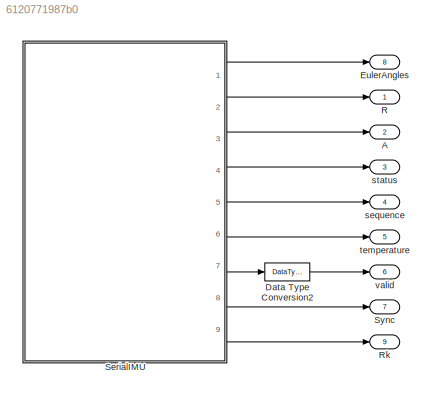
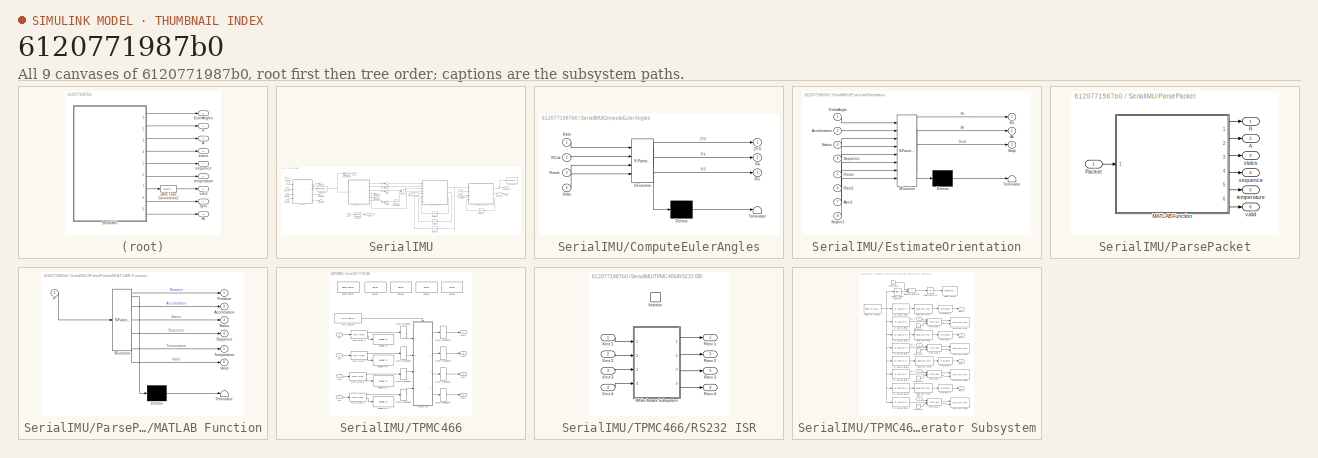
[diagram: thumbnail index - all 9 canvases of the model, root first then tree order]
MODEL slx_6120771987b0
KIND model
BLOCK [Outport] A
  IconDisplay = Port number
  Port = 2
BLOCK [DataTypeConversion] Data Type Conversion2
  OutDataTypeStr = double
  RndMeth = Floor
  SaturateOnIntegerOverflow = off
BLOCK [Outport] EulerAngles
  IconDisplay = Port number
  Port = 8
BLOCK [Outport] R
  IconDisplay = Port number
BLOCK [Outport] Rk
  IconDisplay = Port number
  Port = 9
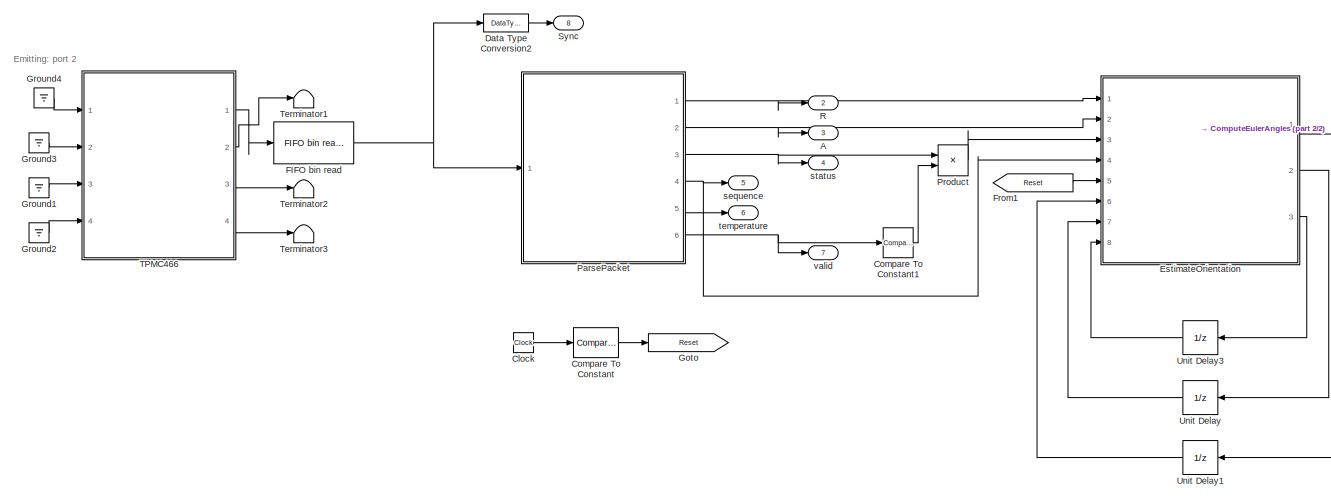
[diagram: SerialIMU - part 1/2, center side, full height]
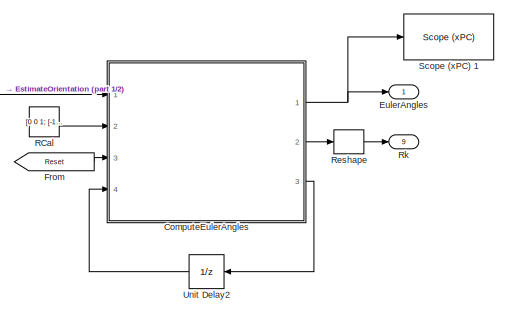
[diagram: SerialIMU - part 2/2, middle right region]
BLOCK [SubSystem] SerialIMU
  FunctionWithSeparateData = off
  MaskHideContents = off
  MinAlgLoopOccurrences = off
  Opaque = off
  Ports = [0, 9]
  PropExecContextOutsideSubsystem = off
  RTWSystemCode = Auto
  RequestExecContextInheritance = off
BLOCK [Outport] SerialIMU/A
  IconDisplay = Port number
  Port = 3
BLOCK [Clock] SerialIMU/Clock
BLOCK [Reference] SerialIMU/Compare To Constant  REF=simulink/Logic and Bit
Operations/Compare
To Constant
  OutDataTypeStr = uint8
  Ports = [1, 1]
  SourceBlock = simulink/Logic and Bit\nOperations/Compare\nTo Constant
  SourceType = Compare To Constant
  ZeroCross = on
  const = 0.2
  relop = <
BLOCK [Reference] SerialIMU/Compare To Constant1  REF=simulink/Logic and Bit
Operations/Compare
To Constant
  OutDataTypeStr = uint8
  Ports = [1, 1]
  SourceBlock = simulink/Logic and Bit\nOperations/Compare\nTo Constant
  SourceType = Compare To Constant
  ZeroCross = on
  const = 1
  relop = ==
BLOCK [SubSystem] SerialIMU/ComputeEulerAngles
  ErrorFcn = Stateflow.Translate.translate
  FunctionWithSeparateData = off
  MaskHideContents = off
  MinAlgLoopOccurrences = off
  Opaque = off
  PermitHierarchicalResolution = ExplicitOnly
  Ports = [4, 3]
  PropExecContextOutsideSubsystem = off
  RTWSystemCode = Auto
  RequestExecContextInheritance = off
  SFBlockType = MATLAB Function
  TreatAsAtomicUnit = on
BLOCK [Demux] SerialIMU/ComputeEulerAngles/ Demux 
  Outputs = 1
  Ports = [1, 1]
BLOCK [S-Function] SerialIMU/ComputeEulerAngles/ SFunction 
  EnableBusSupport = on
  FunctionName = sf_sfun
  PortCounts = [4 4]
  Ports = [4, 4]
  Tag = Stateflow S-Function KVHSerial03 1
BLOCK [Terminator] SerialIMU/ComputeEulerAngles/ Terminator 
BLOCK [Outport] SerialIMU/ComputeEulerAngles/R0
  IconDisplay = Port number
  Port = 3
BLOCK [Inport] SerialIMU/ComputeEulerAngles/R0In
  IconDisplay = Port number
  Port = 4
BLOCK [Inport] SerialIMU/ComputeEulerAngles/RCal
  IconDisplay = Port number
  Port = 2
BLOCK [Inport] SerialIMU/ComputeEulerAngles/Reset
  IconDisplay = Port number
  Port = 3
BLOCK [Outport] SerialIMU/ComputeEulerAngles/Rk
  IconDisplay = Port number
  Port = 2
BLOCK [Inport] SerialIMU/ComputeEulerAngles/RkIn
  IconDisplay = Port number
BLOCK [Outport] SerialIMU/ComputeEulerAngles/ZYX
  IconDisplay = Port number
BLOCK [DataTypeConversion] SerialIMU/Data Type Conversion2
  OutDataTypeStr = double
  RndMeth = Floor
  SaturateOnIntegerOverflow = off
BLOCK [SubSystem] SerialIMU/EstimateOrientation
  ErrorFcn = Stateflow.Translate.translate
  FunctionWithSeparateData = off
  MaskHideContents = off
  MinAlgLoopOccurrences = off
  Opaque = off
  PermitHierarchicalResolution = ExplicitOnly
  Ports = [8, 3]
  PropExecContextOutsideSubsystem = off
  RTWSystemCode = Auto
  RequestExecContextInheritance = off
  SFBlockType = MATLAB Function
  TreatAsAtomicUnit = on
BLOCK [Demux] SerialIMU/EstimateOrientation/ Demux 
  Outputs = 1
  Ports = [1, 1]
BLOCK [S-Function] SerialIMU/EstimateOrientation/ SFunction 
  EnableBusSupport = on
  FunctionName = sf_sfun
  PortCounts = [8 4]
  Ports = [8, 4]
  Tag = Stateflow S-Function KVHSerial03 2
BLOCK [Terminator] SerialIMU/EstimateOrientation/ Terminator 
BLOCK [Inport] SerialIMU/EstimateOrientation/Acceleration
  IconDisplay = Port number
  Port = 2
BLOCK [Outport] SerialIMU/EstimateOrientation/Ak
  IconDisplay = Port number
  Port = 2
BLOCK [Inport] SerialIMU/EstimateOrientation/Akm1
  IconDisplay = Port number
  Port = 7
BLOCK [Inport] SerialIMU/EstimateOrientation/DeltaAngle
  IconDisplay = Port number
BLOCK [Inport] SerialIMU/EstimateOrientation/Reset
  IconDisplay = Port number
  Port = 5
BLOCK [Outport] SerialIMU/EstimateOrientation/Rk
  IconDisplay = Port number
BLOCK [Inport] SerialIMU/EstimateOrientation/Rkm1
  IconDisplay = Port number
  Port = 6
BLOCK [Outport] SerialIMU/EstimateOrientation/Seqk
  IconDisplay = Port number
  Port = 3
BLOCK [Inport] SerialIMU/EstimateOrientation/Seqkm1
  IconDisplay = Port number
  Port = 8
BLOCK [Inport] SerialIMU/EstimateOrientation/Sequence
  IconDisplay = Port number
  Port = 4
BLOCK [Inport] SerialIMU/EstimateOrientation/Status
  IconDisplay = Port number
  Port = 3
BLOCK [Outport] SerialIMU/EulerAngles
  IconDisplay = Port number
BLOCK [Reference] SerialIMU/FIFO bin read   REF=xpcseriallib/FIFO bin read 
  Ports = [1, 1]
  SourceBlock = xpcseriallib/FIFO bin read
  SourceType = Asynchronous FIFO Block: reader
  enable = off
  header = {char([254 129 255 85])}
  hold = Zero output if no new data
  lengths = [36]
  maxsize = 64
  outputtype = 8 bit uint null terminated
  sampletime = 0.001
BLOCK [From] SerialIMU/From
  GotoTag = Reset
BLOCK [From] SerialIMU/From1
  GotoTag = Reset
BLOCK [Goto] SerialIMU/Goto
  GotoTag = Reset
BLOCK [Ground] SerialIMU/Ground1
BLOCK [Ground] SerialIMU/Ground2
BLOCK [Ground] SerialIMU/Ground3
BLOCK [Ground] SerialIMU/Ground4
BLOCK [SubSystem] SerialIMU/ParsePacket
  FunctionWithSeparateData = off
  MaskHideContents = off
  MinAlgLoopOccurrences = off
  Opaque = off
  Ports = [1, 6]
  PropExecContextOutsideSubsystem = off
  RTWSystemCode = Auto
  RequestExecContextInheritance = off
BLOCK [Outport] SerialIMU/ParsePacket/A
  IconDisplay = Port number
  Port = 2
BLOCK [SubSystem] SerialIMU/ParsePacket/MATLAB Function
  ErrorFcn = Stateflow.Translate.translate
  FunctionWithSeparateData = off
  MaskHideContents = off
  MinAlgLoopOccurrences = off
  Opaque = off
  PermitHierarchicalResolution = ExplicitOnly
  Ports = [1, 6]
  PropExecContextOutsideSubsystem = off
  RTWSystemCode = Auto
  RequestExecContextInheritance = off
  SFBlockType = MATLAB Function
  TreatAsAtomicUnit = on
BLOCK [Demux] SerialIMU/ParsePacket/MATLAB Function/ Demux 
  Outputs = 1
  Ports = [1, 1]
BLOCK [S-Function] SerialIMU/ParsePacket/MATLAB Function/ SFunction 
  EnableBusSupport = on
  FunctionName = sf_sfun
  PortCounts = [1 7]
  Ports = [1, 7]
  Tag = Stateflow S-Function KVHSerial03 4
BLOCK [Terminator] SerialIMU/ParsePacket/MATLAB Function/ Terminator 
BLOCK [Outport] SerialIMU/ParsePacket/MATLAB Function/Acceleration
  IconDisplay = Port number
  Port = 2
BLOCK [Inport] SerialIMU/ParsePacket/MATLAB Function/P
  IconDisplay = Port number
BLOCK [Outport] SerialIMU/ParsePacket/MATLAB Function/Rotation
  IconDisplay = Port number
BLOCK [Outport] SerialIMU/ParsePacket/MATLAB Function/Sequence
  IconDisplay = Port number
  Port = 4
BLOCK [Outport] SerialIMU/ParsePacket/MATLAB Function/Status
  IconDisplay = Port number
  Port = 3
BLOCK [Outport] SerialIMU/ParsePacket/MATLAB Function/Temperature
  IconDisplay = Port number
  Port = 5
BLOCK [Outport] SerialIMU/ParsePacket/MATLAB Function/Valid
  IconDisplay = Port number
  Port = 6
BLOCK [Inport] SerialIMU/ParsePacket/Packet
  IconDisplay = Port number
BLOCK [Outport] SerialIMU/ParsePacket/R
  IconDisplay = Port number
BLOCK [Outport] SerialIMU/ParsePacket/sequence
  IconDisplay = Port number
  Port = 4
BLOCK [Outport] SerialIMU/ParsePacket/status
  IconDisplay = Port number
  Port = 3
BLOCK [Outport] SerialIMU/ParsePacket/temperature
  IconDisplay = Port number
  Port = 5
BLOCK [Outport] SerialIMU/ParsePacket/valid
  IconDisplay = Port number
  Port = 6
BLOCK [Product] SerialIMU/Product
  InputSameDT = off
  OutDataTypeStr = Inherit: Inherit via internal rule
  Ports = [2, 1]
  SaturateOnIntegerOverflow = off
BLOCK [Outport] SerialIMU/R
  IconDisplay = Port number
  Port = 2
BLOCK [Constant] SerialIMU/RCal
  Value = [0 0 1; [-1 -1; 1 -1]/sqrt(2) [0; 0]]'
BLOCK [Reshape] SerialIMU/Reshape
  Ports = [1, 1]
BLOCK [Outport] SerialIMU/Rk
  IconDisplay = Port number
  Port = 9
BLOCK [Reference] SerialIMU/Scope (xPC) 1  REF=xpclib/Misc./Scope (xPC) 
  Ports = [1]
  SourceBlock = xpclib/Misc./Scope (xPC)
  SourceType = xpcscopeblock
  autorestart = off
  autostart = on
  dynamicfilemode = off
  filename = data.dat
  formatstr = '%15.6f'
  grid = on
  interleave = 10
  maxwritefilesize = 512*1024^2
  mode = Lazy
  noprepostsamples = 0
  nosamples = 500
  scopeno = 1
  scopetype = Target
  triggerlevel = 0.0
  triggermode = FreeRun
  triggersample = 0
  triggerscope = 1
  triggersignal = 1
  triggerslope = Either
  trigsignalfromport = off
  viewmode = Graphical rolling
  writesize = 512
  ylimits = [-pi pi]
BLOCK [Outport] SerialIMU/Sync
  IconDisplay = Port number
  Port = 8
BLOCK [SubSystem] SerialIMU/TPMC466
  AncestorBlock = speedgoatlib/IO503/TPMC466
  FunctionWithSeparateData = off
  InitFcn = m_XR17D15x(3);
  MaskHideContents = off
  MinAlgLoopOccurrences = off
  Opaque = off
  Ports = [4, 4]
  PropExecContextOutsideSubsystem = off
  RTWSystemCode = Auto
  RequestExecContextInheritance = off
BLOCK [Reference] SerialIMU/TPMC466/Board Setup  REF=speedgoatlib/IO503/TEWS TPMC466  (lib defined in mdl_2b10c7445f81, mdl_649b3eec89a6, +4 more)
Internal blocks/Board Setup
  Ports = []
  SourceBlock = speedgoatlib/IO503/TEWS TPMC466\nInternal blocks/Board Setup
  SourceType = board_setup_XR17D15x
  irqnum = 9
  slot = brdslot
BLOCK [Reference] SerialIMU/TPMC466/Enable TX   REF=speedgoatlib/IO503/TEWS TPMC466  (lib defined in mdl_2b10c7445f81, mdl_649b3eec89a6, +4 more)
Internal blocks/Enable TX 
  Ports = [1]
  SourceBlock = speedgoatlib/IO503/TEWS TPMC466\nInternal blocks/Enable TX
  SourceType = tx_int_enable_XR17D15x
  port = 1
  slot = brdslot
BLOCK [Reference] SerialIMU/TPMC466/Enable TX 1  REF=speedgoatlib/IO503/TEWS TPMC466  (lib defined in mdl_2b10c7445f81, mdl_649b3eec89a6, +4 more)
Internal blocks/Enable TX 
  Ports = [1]
  SourceBlock = speedgoatlib/IO503/TEWS TPMC466\nInternal blocks/Enable TX
  SourceType = tx_int_enable_XR17D15x
  port = 2
  slot = brdslot
BLOCK [Reference] SerialIMU/TPMC466/Enable TX 2  REF=speedgoatlib/IO503/TEWS TPMC466  (lib defined in mdl_2b10c7445f81, mdl_649b3eec89a6, +4 more)
Internal blocks/Enable TX 
  Ports = [1]
  SourceBlock = speedgoatlib/IO503/TEWS TPMC466\nInternal blocks/Enable TX
  SourceType = tx_int_enable_XR17D15x
  port = 3
  slot = brdslot
BLOCK [Reference] SerialIMU/TPMC466/Enable TX 3  REF=speedgoatlib/IO503/TEWS TPMC466  (lib defined in mdl_2b10c7445f81, mdl_649b3eec89a6, +4 more)
Internal blocks/Enable TX 
  Ports = [1]
  SourceBlock = speedgoatlib/IO503/TEWS TPMC466\nInternal blocks/Enable TX
  SourceType = tx_int_enable_XR17D15x
  port = 4
  slot = brdslot
BLOCK [Reference] SerialIMU/TPMC466/FIFO write 1  REF=xpcseriallib/FIFO write 
  Ports = [1, 2]
  SourceBlock = xpcseriallib/FIFO write
  SourceType = Asynchronous FIFO Block: writer
  id = XMT channel 1, IRQ 9
  inputtype = 8 bit uint null terminated
  present = on
  sampletime = -1
  size = 1024
BLOCK [Reference] SerialIMU/TPMC466/FIFO write 2  REF=xpcseriallib/FIFO write 
  Ports = [1, 2]
  SourceBlock = xpcseriallib/FIFO write
  SourceType = Asynchronous FIFO Block: writer
  id = XMT channel 2, IRQ 9
  inputtype = 8 bit uint null terminated
  present = on
  sampletime = -1
  size = 1024
BLOCK [Reference] SerialIMU/TPMC466/FIFO write 3  REF=xpcseriallib/FIFO write 
  Ports = [1, 2]
  SourceBlock = xpcseriallib/FIFO write
  SourceType = Asynchronous FIFO Block: writer
  id = XMT channel 3, IRQ 9
  inputtype = 8 bit uint null terminated
  present = on
  sampletime = -1
  size = 1024
BLOCK [Reference] SerialIMU/TPMC466/FIFO write 4  REF=xpcseriallib/FIFO write 
  Ports = [1, 2]
  SourceBlock = xpcseriallib/FIFO write
  SourceType = Asynchronous FIFO Block: writer
  id = XMT channel 4, IRQ 9
  inputtype = 8 bit uint null terminated
  present = on
  sampletime = -1
  size = 1024
BLOCK [Reference] SerialIMU/TPMC466/IRQ Source  REF=xpclib/Asynchronous
Event/IRQ Source
  Ports = [0, 1]
  SourceBlock = xpclib/Asynchronous\nEvent/IRQ Source
  SourceType = xpcinterrupt
  b_type = None/Other
  irqNo = 9
  preempt = off
  slot = brdslot
BLOCK [Inport] SerialIMU/TPMC466/In1
  IconDisplay = Port number
BLOCK [Inport] SerialIMU/TPMC466/In2
  IconDisplay = Port number
  Port = 2
BLOCK [Inport] SerialIMU/TPMC466/In3
  IconDisplay = Port number
  Port = 3
BLOCK [Inport] SerialIMU/TPMC466/In4
  IconDisplay = Port number
  Port = 4
BLOCK [Outport] SerialIMU/TPMC466/Out1
  IconDisplay = Port number
BLOCK [Outport] SerialIMU/TPMC466/Out2
  IconDisplay = Port number
  Port = 2
BLOCK [Outport] SerialIMU/TPMC466/Out3
  IconDisplay = Port number
  Port = 3
BLOCK [Outport] SerialIMU/TPMC466/Out4
  IconDisplay = Port number
  Port = 4
BLOCK [SubSystem] SerialIMU/TPMC466/RS232 ISR
  FunctionWithSeparateData = off
  MaskHideContents = off
  MinAlgLoopOccurrences = off
  Opaque = off
  Ports = [4, 4, 0, 1]
  PropExecContextOutsideSubsystem = off
  RTWSystemCode = Auto
  RequestExecContextInheritance = off
  TreatAsAtomicUnit = on
BLOCK [Outport] SerialIMU/TPMC466/RS232 ISR/Recv 1
  IconDisplay = Port number
  InitialOutput = Ground
  SourceOfInitialOutputValue = Input signal
BLOCK [Outport] SerialIMU/TPMC466/RS232 ISR/Recv 2
  IconDisplay = Port number
  InitialOutput = uint32(0);
  Port = 2
  SourceOfInitialOutputValue = Input signal
BLOCK [Outport] SerialIMU/TPMC466/RS232 ISR/Recv 3
  IconDisplay = Port number
  InitialOutput = uint32([0]);
  Port = 3
  SourceOfInitialOutputValue = Input signal
BLOCK [Outport] SerialIMU/TPMC466/RS232 ISR/Recv 4
  IconDisplay = Port number
  InitialOutput = uint32([0]);
  Port = 4
  SourceOfInitialOutputValue = Input signal
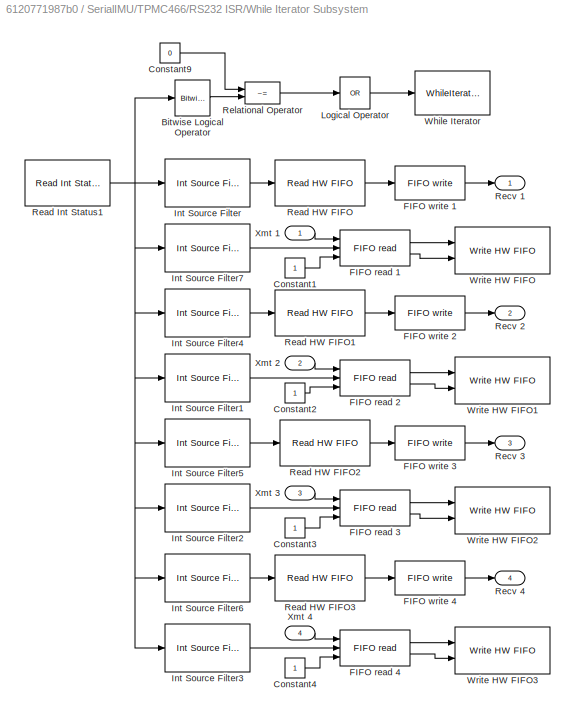
BLOCK [SubSystem] SerialIMU/TPMC466/RS232 ISR/While Iterator Subsystem
  FunctionWithSeparateData = off
  MaskHideContents = off
  MinAlgLoopOccurrences = off
  Opaque = off
  Ports = [4, 4]
  PropExecContextOutsideSubsystem = off
  RTWSystemCode = Auto
  RequestExecContextInheritance = off
  TreatAsAtomicUnit = on
BLOCK [Reference] SerialIMU/TPMC466/RS232 ISR/While Iterator Subsystem/Bitwise Logical Operator  REF=simulink/Logic and Bit
Operations/Bitwise
Operator
  BitMask = 'FF'
  BitMaskRealWorld = Stored Integer
  NumInputPorts = 1
  Ports = [1, 1]
  SourceBlock = simulink/Logic and Bit\nOperations/Bitwise\nOperator
  SourceType = Bitwise Operator
  UseBitMask = on
  logicop = AND
BLOCK [Constant] SerialIMU/TPMC466/RS232 ISR/While Iterator Subsystem/Constant1
  OutDataTypeStr = uint32
BLOCK [Constant] SerialIMU/TPMC466/RS232 ISR/While Iterator Subsystem/Constant2
  OutDataTypeStr = uint32
BLOCK [Constant] SerialIMU/TPMC466/RS232 ISR/While Iterator Subsystem/Constant3
  OutDataTypeStr = uint32
BLOCK [Constant] SerialIMU/TPMC466/RS232 ISR/While Iterator Subsystem/Constant4
  OutDataTypeStr = uint32
BLOCK [Constant] SerialIMU/TPMC466/RS232 ISR/While Iterator Subsystem/Constant9
  OutDataTypeStr = uint32
  Value = 0
BLOCK [Reference] SerialIMU/TPMC466/RS232 ISR/While Iterator Subsystem/FIFO read 1  REF=xpcseriallib/FIFO read 
  Ports = [3, 2]
  SourceBlock = xpcseriallib/FIFO read
  SourceType = Asynchronous FIFO Block: reader
  delimiter = 13
  enable = on
  enableout = on
  maxsize = 60
  minsize = 1
  outputtype = count+32 bit uint
  sampletime = -1
  usedelimiter = off
BLOCK [Reference] SerialIMU/TPMC466/RS232 ISR/While Iterator Subsystem/FIFO read 2  REF=xpcseriallib/FIFO read 
  Ports = [3, 2]
  SourceBlock = xpcseriallib/FIFO read
  SourceType = Asynchronous FIFO Block: reader
  delimiter = 13
  enable = on
  enableout = on
  maxsize = 60
  minsize = 1
  outputtype = count+32 bit uint
  sampletime = -1
  usedelimiter = off
BLOCK [Reference] SerialIMU/TPMC466/RS232 ISR/While Iterator Subsystem/FIFO read 3  REF=xpcseriallib/FIFO read 
  Ports = [3, 2]
  SourceBlock = xpcseriallib/FIFO read
  SourceType = Asynchronous FIFO Block: reader
  delimiter = 13
  enable = on
  enableout = on
  maxsize = 60
  minsize = 1
  outputtype = count+32 bit uint
  sampletime = -1
  usedelimiter = off
BLOCK [Reference] SerialIMU/TPMC466/RS232 ISR/While Iterator Subsystem/FIFO read 4  REF=xpcseriallib/FIFO read 
  Ports = [3, 2]
  SourceBlock = xpcseriallib/FIFO read
  SourceType = Asynchronous FIFO Block: reader
  delimiter = 13
  enable = on
  enableout = on
  maxsize = 60
  minsize = 1
  outputtype = count+32 bit uint
  sampletime = -1
  usedelimiter = off
BLOCK [Reference] SerialIMU/TPMC466/RS232 ISR/While Iterator Subsystem/FIFO write 1  REF=xpcseriallib/FIFO write 
  Ports = [1, 1]
  SourceBlock = xpcseriallib/FIFO write
  SourceType = Asynchronous FIFO Block: writer
  id = RCV channel 1, IRQ 9
  inputtype = count+32 bit uint
  present = off
  sampletime = -1
  size = 1024
BLOCK [Reference] SerialIMU/TPMC466/RS232 ISR/While Iterator Subsystem/FIFO write 2  REF=xpcseriallib/FIFO write 
  Ports = [1, 1]
  SourceBlock = xpcseriallib/FIFO write
  SourceType = Asynchronous FIFO Block: writer
  id = RCV channel 2, IRQ 9
  inputtype = count+32 bit uint
  present = off
  sampletime = -1
  size = 1024
BLOCK [Reference] SerialIMU/TPMC466/RS232 ISR/While Iterator Subsystem/FIFO write 3  REF=xpcseriallib/FIFO write 
  Ports = [1, 1]
  SourceBlock = xpcseriallib/FIFO write
  SourceType = Asynchronous FIFO Block: writer
  id = RCV channel 3, IRQ 9
  inputtype = count+32 bit uint
  present = off
  sampletime = -1
  size = 1024
BLOCK [Reference] SerialIMU/TPMC466/RS232 ISR/While Iterator Subsystem/FIFO write 4  REF=xpcseriallib/FIFO write 
  Ports = [1, 1]
  SourceBlock = xpcseriallib/FIFO write
  SourceType = Asynchronous FIFO Block: writer
  id = RCV channel 4, IRQ 9
  inputtype = count+32 bit uint
  present = off
  sampletime = -1
  size = 1024
BLOCK [Reference] SerialIMU/TPMC466/RS232 ISR/While Iterator Subsystem/Int Source Filter  REF=speedgoatlib/IO503/TEWS TPMC466  (lib defined in mdl_2b10c7445f81, mdl_649b3eec89a6, +4 more)
Internal blocks/Int Source Filter
  Ports = [1, 1]
  SourceBlock = speedgoatlib/IO503/TEWS TPMC466\nInternal blocks/Int Source Filter
  SourceType = int_source_filter_XR17D15x
  port = 1
  value = Receive data
BLOCK [Reference] SerialIMU/TPMC466/RS232 ISR/While Iterator Subsystem/Int Source Filter1  REF=speedgoatlib/IO503/TEWS TPMC466  (lib defined in mdl_2b10c7445f81, mdl_649b3eec89a6, +4 more)
Internal blocks/Int Source Filter
  Ports = [1, 1]
  SourceBlock = speedgoatlib/IO503/TEWS TPMC466\nInternal blocks/Int Source Filter
  SourceType = int_source_filter_XR17D15x
  port = 2
  value = Transmitter empty
BLOCK [Reference] SerialIMU/TPMC466/RS232 ISR/While Iterator Subsystem/Int Source Filter2  REF=speedgoatlib/IO503/TEWS TPMC466  (lib defined in mdl_2b10c7445f81, mdl_649b3eec89a6, +4 more)
Internal blocks/Int Source Filter
  Ports = [1, 1]
  SourceBlock = speedgoatlib/IO503/TEWS TPMC466\nInternal blocks/Int Source Filter
  SourceType = int_source_filter_XR17D15x
  port = 3
  value = Transmitter empty
BLOCK [Reference] SerialIMU/TPMC466/RS232 ISR/While Iterator Subsystem/Int Source Filter3  REF=speedgoatlib/IO503/TEWS TPMC466  (lib defined in mdl_2b10c7445f81, mdl_649b3eec89a6, +4 more)
Internal blocks/Int Source Filter
  Ports = [1, 1]
  SourceBlock = speedgoatlib/IO503/TEWS TPMC466\nInternal blocks/Int Source Filter
  SourceType = int_source_filter_XR17D15x
  port = 4
  value = Transmitter empty
BLOCK [Reference] SerialIMU/TPMC466/RS232 ISR/While Iterator Subsystem/Int Source Filter4  REF=speedgoatlib/IO503/TEWS TPMC466  (lib defined in mdl_2b10c7445f81, mdl_649b3eec89a6, +4 more)
Internal blocks/Int Source Filter
  Ports = [1, 1]
  SourceBlock = speedgoatlib/IO503/TEWS TPMC466\nInternal blocks/Int Source Filter
  SourceType = int_source_filter_XR17D15x
  port = 2
  value = Receive data
BLOCK [Reference] SerialIMU/TPMC466/RS232 ISR/While Iterator Subsystem/Int Source Filter5  REF=speedgoatlib/IO503/TEWS TPMC466  (lib defined in mdl_2b10c7445f81, mdl_649b3eec89a6, +4 more)
Internal blocks/Int Source Filter
  Ports = [1, 1]
  SourceBlock = speedgoatlib/IO503/TEWS TPMC466\nInternal blocks/Int Source Filter
  SourceType = int_source_filter_XR17D15x
  port = 3
  value = Receive data
BLOCK [Reference] SerialIMU/TPMC466/RS232 ISR/While Iterator Subsystem/Int Source Filter6  REF=speedgoatlib/IO503/TEWS TPMC466  (lib defined in mdl_2b10c7445f81, mdl_649b3eec89a6, +4 more)
Internal blocks/Int Source Filter
  Ports = [1, 1]
  SourceBlock = speedgoatlib/IO503/TEWS TPMC466\nInternal blocks/Int Source Filter
  SourceType = int_source_filter_XR17D15x
  port = 4
  value = Receive data
BLOCK [Reference] SerialIMU/TPMC466/RS232 ISR/While Iterator Subsystem/Int Source Filter7  REF=speedgoatlib/IO503/TEWS TPMC466  (lib defined in mdl_2b10c7445f81, mdl_649b3eec89a6, +4 more)
Internal blocks/Int Source Filter
  Ports = [1, 1]
  SourceBlock = speedgoatlib/IO503/TEWS TPMC466\nInternal blocks/Int Source Filter
  SourceType = int_source_filter_XR17D15x
  port = 1
  value = Transmitter empty
BLOCK [Logic] SerialIMU/TPMC466/RS232 ISR/While Iterator Subsystem/Logical Operator
  AllPortsSameDT = off
  Inputs = 1
  Operator = OR
  Ports = [1, 1]
BLOCK [Reference] SerialIMU/TPMC466/RS232 ISR/While Iterator Subsystem/Read HW FIFO  REF=speedgoatlib/IO503/TEWS TPMC466  (lib defined in mdl_2b10c7445f81, mdl_649b3eec89a6, +4 more)
Internal blocks/Read HW FIFO
  Ports = [1, 1]
  SourceBlock = speedgoatlib/IO503/TEWS TPMC466\nInternal blocks/Read HW FIFO
  SourceType = read_hw_fifo_XR17D15x
  flush = on
  port = 1
  slot = subslot
BLOCK [Reference] SerialIMU/TPMC466/RS232 ISR/While Iterator Subsystem/Read HW FIFO1  REF=speedgoatlib/IO503/TEWS TPMC466  (lib defined in mdl_2b10c7445f81, mdl_649b3eec89a6, +4 more)
Internal blocks/Read HW FIFO
  Ports = [1, 1]
  SourceBlock = speedgoatlib/IO503/TEWS TPMC466\nInternal blocks/Read HW FIFO
  SourceType = read_hw_fifo_XR17D15x
  flush = on
  port = 2
  slot = subslot
BLOCK [Reference] SerialIMU/TPMC466/RS232 ISR/While Iterator Subsystem/Read HW FIFO2  REF=speedgoatlib/IO503/TEWS TPMC466  (lib defined in mdl_2b10c7445f81, mdl_649b3eec89a6, +4 more)
Internal blocks/Read HW FIFO
  Ports = [1, 1]
  SourceBlock = speedgoatlib/IO503/TEWS TPMC466\nInternal blocks/Read HW FIFO
  SourceType = read_hw_fifo_XR17D15x
  flush = on
  port = 3
  slot = subslot
BLOCK [Reference] SerialIMU/TPMC466/RS232 ISR/While Iterator Subsystem/Read HW FIFO3  REF=speedgoatlib/IO503/TEWS TPMC466  (lib defined in mdl_2b10c7445f81, mdl_649b3eec89a6, +4 more)
Internal blocks/Read HW FIFO
  Ports = [1, 1]
  SourceBlock = speedgoatlib/IO503/TEWS TPMC466\nInternal blocks/Read HW FIFO
  SourceType = read_hw_fifo_XR17D15x
  flush = on
  port = 4
  slot = subslot
BLOCK [Reference] SerialIMU/TPMC466/RS232 ISR/While Iterator Subsystem/Read Int Status1  REF=speedgoatlib/IO503/TEWS TPMC466  (lib defined in mdl_2b10c7445f81, mdl_649b3eec89a6, +4 more)
Internal blocks/Read Int Status
  Ports = [0, 1]
  SourceBlock = speedgoatlib/IO503/TEWS TPMC466\nInternal blocks/Read Int Status
  SourceType = read_int_status_XR17D15x
  slot = subslot
BLOCK [Outport] SerialIMU/TPMC466/RS232 ISR/While Iterator Subsystem/Recv 1
  IconDisplay = Port number
  InitialOutput = uint32([0]);
  SourceOfInitialOutputValue = Input signal
BLOCK [Outport] SerialIMU/TPMC466/RS232 ISR/While Iterator Subsystem/Recv 2
  IconDisplay = Port number
  InitialOutput = uint32([0]);
  Port = 2
  SourceOfInitialOutputValue = Input signal
BLOCK [Outport] SerialIMU/TPMC466/RS232 ISR/While Iterator Subsystem/Recv 3
  IconDisplay = Port number
  InitialOutput = uint32([0]);
  Port = 3
  SourceOfInitialOutputValue = Input signal
BLOCK [Outport] SerialIMU/TPMC466/RS232 ISR/While Iterator Subsystem/Recv 4
  IconDisplay = Port number
  InitialOutput = uint32([0]);
  Port = 4
  SourceOfInitialOutputValue = Input signal
BLOCK [RelationalOperator] SerialIMU/TPMC466/RS232 ISR/While Iterator Subsystem/Relational Operator
  InputSameDT = off
  Operator = ~=
  Ports = [2, 1]
BLOCK [WhileIterator] SerialIMU/TPMC466/RS232 ISR/While Iterator Subsystem/While Iterator
  MaxIters = 65
  Ports = [1]
  WhileBlockType = do-while
BLOCK [Reference] SerialIMU/TPMC466/RS232 ISR/While Iterator Subsystem/Write HW FIFO  REF=speedgoatlib/IO503/TEWS TPMC466  (lib defined in mdl_2b10c7445f81, mdl_649b3eec89a6, +4 more)
Internal blocks/Write HW FIFO
  Ports = [2]
  SourceBlock = speedgoatlib/IO503/TEWS TPMC466\nInternal blocks/Write HW FIFO
  SourceType = write_hw_fifo_XR17D15x
  port = 1
  slot = subslot
BLOCK [Reference] SerialIMU/TPMC466/RS232 ISR/While Iterator Subsystem/Write HW FIFO1  REF=speedgoatlib/IO503/TEWS TPMC466  (lib defined in mdl_2b10c7445f81, mdl_649b3eec89a6, +4 more)
Internal blocks/Write HW FIFO
  Ports = [2]
  SourceBlock = speedgoatlib/IO503/TEWS TPMC466\nInternal blocks/Write HW FIFO
  SourceType = write_hw_fifo_XR17D15x
  port = 2
  slot = subslot
BLOCK [Reference] SerialIMU/TPMC466/RS232 ISR/While Iterator Subsystem/Write HW FIFO2  REF=speedgoatlib/IO503/TEWS TPMC466  (lib defined in mdl_2b10c7445f81, mdl_649b3eec89a6, +4 more)
Internal blocks/Write HW FIFO
  Ports = [2]
  SourceBlock = speedgoatlib/IO503/TEWS TPMC466\nInternal blocks/Write HW FIFO
  SourceType = write_hw_fifo_XR17D15x
  port = 3
  slot = subslot
BLOCK [Reference] SerialIMU/TPMC466/RS232 ISR/While Iterator Subsystem/Write HW FIFO3  REF=speedgoatlib/IO503/TEWS TPMC466  (lib defined in mdl_2b10c7445f81, mdl_649b3eec89a6, +4 more)
Internal blocks/Write HW FIFO
  Ports = [2]
  SourceBlock = speedgoatlib/IO503/TEWS TPMC466\nInternal blocks/Write HW FIFO
  SourceType = write_hw_fifo_XR17D15x
  port = 4
  slot = subslot
BLOCK [Inport] SerialIMU/TPMC466/RS232 ISR/While Iterator Subsystem/Xmt 1
  IconDisplay = Port number
BLOCK [Inport] SerialIMU/TPMC466/RS232 ISR/While Iterator Subsystem/Xmt 2
  IconDisplay = Port number
  Port = 2
BLOCK [Inport] SerialIMU/TPMC466/RS232 ISR/While Iterator Subsystem/Xmt 3
  IconDisplay = Port number
  Port = 3
BLOCK [Inport] SerialIMU/TPMC466/RS232 ISR/While Iterator Subsystem/Xmt 4
  IconDisplay = Port number
  Port = 4
BLOCK [Inport] SerialIMU/TPMC466/RS232 ISR/Xmt 1
  IconDisplay = Port number
BLOCK [Inport] SerialIMU/TPMC466/RS232 ISR/Xmt 2
  IconDisplay = Port number
  Port = 2
BLOCK [Inport] SerialIMU/TPMC466/RS232 ISR/Xmt 3
  IconDisplay = Port number
  Port = 3
BLOCK [Inport] SerialIMU/TPMC466/RS232 ISR/Xmt 4
  IconDisplay = Port number
  Port = 4
BLOCK [TriggerPort] SerialIMU/TPMC466/RS232 ISR/function
  Ports = []
  StatesWhenEnabling = held
  TriggerType = function-call
BLOCK [RateTransition] SerialIMU/TPMC466/Rate Transition
  Deterministic = off
  Integrity = off
BLOCK [RateTransition] SerialIMU/TPMC466/Rate Transition1
  Deterministic = off
  Integrity = off
  OutPortSampleTime = 0
BLOCK [RateTransition] SerialIMU/TPMC466/Rate Transition2
  Deterministic = off
  Integrity = off
BLOCK [RateTransition] SerialIMU/TPMC466/Rate Transition3
  Deterministic = off
  Integrity = off
  OutPortSampleTime = 0
BLOCK [RateTransition] SerialIMU/TPMC466/Rate Transition4
  Deterministic = off
  Integrity = off
BLOCK [RateTransition] SerialIMU/TPMC466/Rate Transition5
  Deterministic = off
  Integrity = off
BLOCK [RateTransition] SerialIMU/TPMC466/Rate Transition6
  Deterministic = off
  Integrity = off
  OutPortSampleTime = 0
BLOCK [RateTransition] SerialIMU/TPMC466/Rate Transition7
  Deterministic = off
  Integrity = off
  OutPortSampleTime = 0
BLOCK [Reference] SerialIMU/TPMC466/Setup1  REF=speedgoatlib/IO503/TEWS TPMC466  (lib defined in mdl_2b10c7445f81, mdl_649b3eec89a6, +4 more)
Internal blocks/Setup 
  Ports = []
  SourceBlock = speedgoatlib/IO503/TEWS TPMC466\nInternal blocks/Setup
  SourceType = setup_XR17D15x
  bauddivisor = 1
  baudrate = 921600
  ctsmode = none
  mode8x = 16x (standard)
  nstop = 1
  parity = None
  port = 1
  prescale = off
  rlevel = 1
  rs485delay = 1
  rs485mode = off
  slot = brdslot
  standard = on
  transceiver = RS422
  width = 8
  xoff = 19
  xon = 17
  xonoff = none
BLOCK [Reference] SerialIMU/TPMC466/Setup2  REF=speedgoatlib/IO503/TEWS TPMC466  (lib defined in mdl_2b10c7445f81, mdl_649b3eec89a6, +4 more)
Internal blocks/Setup 
  Ports = []
  SourceBlock = speedgoatlib/IO503/TEWS TPMC466\nInternal blocks/Setup
  SourceType = setup_XR17D15x
  bauddivisor = 1
  baudrate = 2764800
  ctsmode = none
  mode8x = 16x (standard)
  nstop = 1
  parity = None
  port = 2
  prescale = off
  rlevel = quarter full (16)
  rs485delay = 1
  rs485mode = on
  slot = brdslot
  standard = on
  transceiver = RS485 half-duplex
  width = 8
  xoff = 19
  xon = 17
  xonoff = XON/XOFF
BLOCK [Reference] SerialIMU/TPMC466/Setup3  REF=speedgoatlib/IO503/TEWS TPMC466  (lib defined in mdl_2b10c7445f81, mdl_649b3eec89a6, +4 more)
Internal blocks/Setup 
  Ports = []
  SourceBlock = speedgoatlib/IO503/TEWS TPMC466\nInternal blocks/Setup
  SourceType = setup_XR17D15x
  bauddivisor = 1
  baudrate = 115200
  ctsmode = none
  mode8x = 16x (standard)
  nstop = 1
  parity = None
  port = 3
  prescale = off
  rlevel = half full (32)
  rs485delay = 0
  rs485mode = off
  slot = brdslot
  standard = on
  transceiver = RS485 half-duplex
  width = 8
  xoff = 19
  xon = 17
  xonoff = none
BLOCK [Reference] SerialIMU/TPMC466/Setup4  REF=speedgoatlib/IO503/TEWS TPMC466  (lib defined in mdl_2b10c7445f81, mdl_649b3eec89a6, +4 more)
Internal blocks/Setup 
  Ports = []
  SourceBlock = speedgoatlib/IO503/TEWS TPMC466\nInternal blocks/Setup
  SourceType = setup_XR17D15x
  bauddivisor = 1
  baudrate = 115200
  ctsmode = none
  mode8x = 16x (standard)
  nstop = 1
  parity = None
  port = 4
  prescale = off
  rlevel = half full (32)
  rs485delay = 0
  rs485mode = off
  slot = brdslot
  standard = on
  transceiver = RS485 half-duplex
  width = 8
  xoff = 19
  xon = 17
  xonoff = none
BLOCK [Terminator] SerialIMU/Terminator1
BLOCK [Terminator] SerialIMU/Terminator2
BLOCK [Terminator] SerialIMU/Terminator3
BLOCK [UnitDelay] SerialIMU/Unit Delay
  InitialCondition = [0; 0; 0]
  InputProcessing = Elements as channels (sample based)
  SampleTime = -1
BLOCK [UnitDelay] SerialIMU/Unit Delay1
  InitialCondition = zeros(3,3)
  InputProcessing = Elements as channels (sample based)
  SampleTime = -1
BLOCK [UnitDelay] SerialIMU/Unit Delay2
  InitialCondition = zeros(3,3)
  InputProcessing = Elements as channels (sample based)
  SampleTime = -1
BLOCK [UnitDelay] SerialIMU/Unit Delay3
  InputProcessing = Elements as channels (sample based)
  SampleTime = -1
BLOCK [Outport] SerialIMU/sequence
  IconDisplay = Port number
  Port = 5
BLOCK [Outport] SerialIMU/status
  IconDisplay = Port number
  Port = 4
BLOCK [Outport] SerialIMU/temperature
  IconDisplay = Port number
  Port = 6
BLOCK [Outport] SerialIMU/valid
  IconDisplay = Port number
  Port = 7
BLOCK [Outport] Sync
  IconDisplay = Port number
  Port = 7
BLOCK [Outport] sequence
  IconDisplay = Port number
  Port = 4
BLOCK [Outport] status
  IconDisplay = Port number
  Port = 3
BLOCK [Outport] temperature
  IconDisplay = Port number
  Port = 5
BLOCK [Outport] valid
  IconDisplay = Port number
  Port = 6
ANNOTATION SerialIMU: Emitting: port 2
LINE Data Type Conversion2:1 -> valid:1
LINE SerialIMU/Clock:1 -> SerialIMU/Compare To Constant:1
LINE SerialIMU/Compare To Constant1:1 -> SerialIMU/Product:2
LINE SerialIMU/Compare To Constant:1 -> SerialIMU/Goto:1
NET SerialIMU/ComputeEulerAngles:1 -> SerialIMU/EulerAngles:1, SerialIMU/Scope (xPC) 1:1
LINE SerialIMU/ComputeEulerAngles:2 -> SerialIMU/Reshape:1
LINE SerialIMU/ComputeEulerAngles:3 -> SerialIMU/Unit Delay2:1
LINE SerialIMU/Data Type Conversion2:1 -> SerialIMU/Sync:1
NET SerialIMU/EstimateOrientation:1 -> SerialIMU/ComputeEulerAngles:1, SerialIMU/Unit Delay1:1
LINE SerialIMU/EstimateOrientation:2 -> SerialIMU/Unit Delay:1
LINE SerialIMU/EstimateOrientation:3 -> SerialIMU/Unit Delay3:1
NET SerialIMU/FIFO bin read :1 -> SerialIMU/Data Type Conversion2:1, SerialIMU/ParsePacket:1
LINE SerialIMU/From1:1 -> SerialIMU/EstimateOrientation:5
LINE SerialIMU/From:1 -> SerialIMU/ComputeEulerAngles:3
LINE SerialIMU/Ground1:1 -> SerialIMU/TPMC466:3
LINE SerialIMU/Ground2:1 -> SerialIMU/TPMC466:4
LINE SerialIMU/Ground3:1 -> SerialIMU/TPMC466:2
LINE SerialIMU/Ground4:1 -> SerialIMU/TPMC466:1
LINE SerialIMU/ParsePacket/MATLAB Function:1 -> SerialIMU/ParsePacket/R:1
LINE SerialIMU/ParsePacket/MATLAB Function:2 -> SerialIMU/ParsePacket/A:1
LINE SerialIMU/ParsePacket/MATLAB Function:3 -> SerialIMU/ParsePacket/status:1
LINE SerialIMU/ParsePacket/MATLAB Function:4 -> SerialIMU/ParsePacket/sequence:1
LINE SerialIMU/ParsePacket/MATLAB Function:5 -> SerialIMU/ParsePacket/temperature:1
LINE SerialIMU/ParsePacket/MATLAB Function:6 -> SerialIMU/ParsePacket/valid:1
LINE SerialIMU/ParsePacket/Packet:1 -> SerialIMU/ParsePacket/MATLAB Function:1
NET SerialIMU/ParsePacket:1 -> SerialIMU/EstimateOrientation:1, SerialIMU/R:1
NET SerialIMU/ParsePacket:2 -> SerialIMU/A:1, SerialIMU/EstimateOrientation:2
NET SerialIMU/ParsePacket:3 -> SerialIMU/Product:1, SerialIMU/status:1
NET SerialIMU/ParsePacket:4 -> SerialIMU/EstimateOrientation:4, SerialIMU/sequence:1
LINE SerialIMU/ParsePacket:5 -> SerialIMU/temperature:1
NET SerialIMU/ParsePacket:6 -> SerialIMU/Compare To Constant1:1, SerialIMU/valid:1
LINE SerialIMU/Product:1 -> SerialIMU/EstimateOrientation:3
LINE SerialIMU/RCal:1 -> SerialIMU/ComputeEulerAngles:2
LINE SerialIMU/Reshape:1 -> SerialIMU/Rk:1
LINE SerialIMU/TPMC466:1 -> SerialIMU/FIFO bin read :1
LINE SerialIMU/TPMC466:2 -> SerialIMU/Terminator1:1
LINE SerialIMU/TPMC466:3 -> SerialIMU/Terminator2:1
LINE SerialIMU/TPMC466:4 -> SerialIMU/Terminator3:1
LINE SerialIMU/Unit Delay1:1 -> SerialIMU/EstimateOrientation:6
LINE SerialIMU/Unit Delay2:1 -> SerialIMU/ComputeEulerAngles:4
LINE SerialIMU/Unit Delay3:1 -> SerialIMU/EstimateOrientation:8
LINE SerialIMU/Unit Delay:1 -> SerialIMU/EstimateOrientation:7
LINE SerialIMU:1 -> EulerAngles:1
LINE SerialIMU:2 -> R:1
LINE SerialIMU:3 -> A:1
LINE SerialIMU:4 -> status:1
LINE SerialIMU:5 -> sequence:1
LINE SerialIMU:6 -> temperature:1
LINE SerialIMU:7 -> Data Type Conversion2:1
LINE SerialIMU:8 -> Sync:1
LINE SerialIMU:9 -> Rk:1
note: NET lines group one-source signal fan-out (src -> all destinations, sorted); 1:1 wires keep LINE
